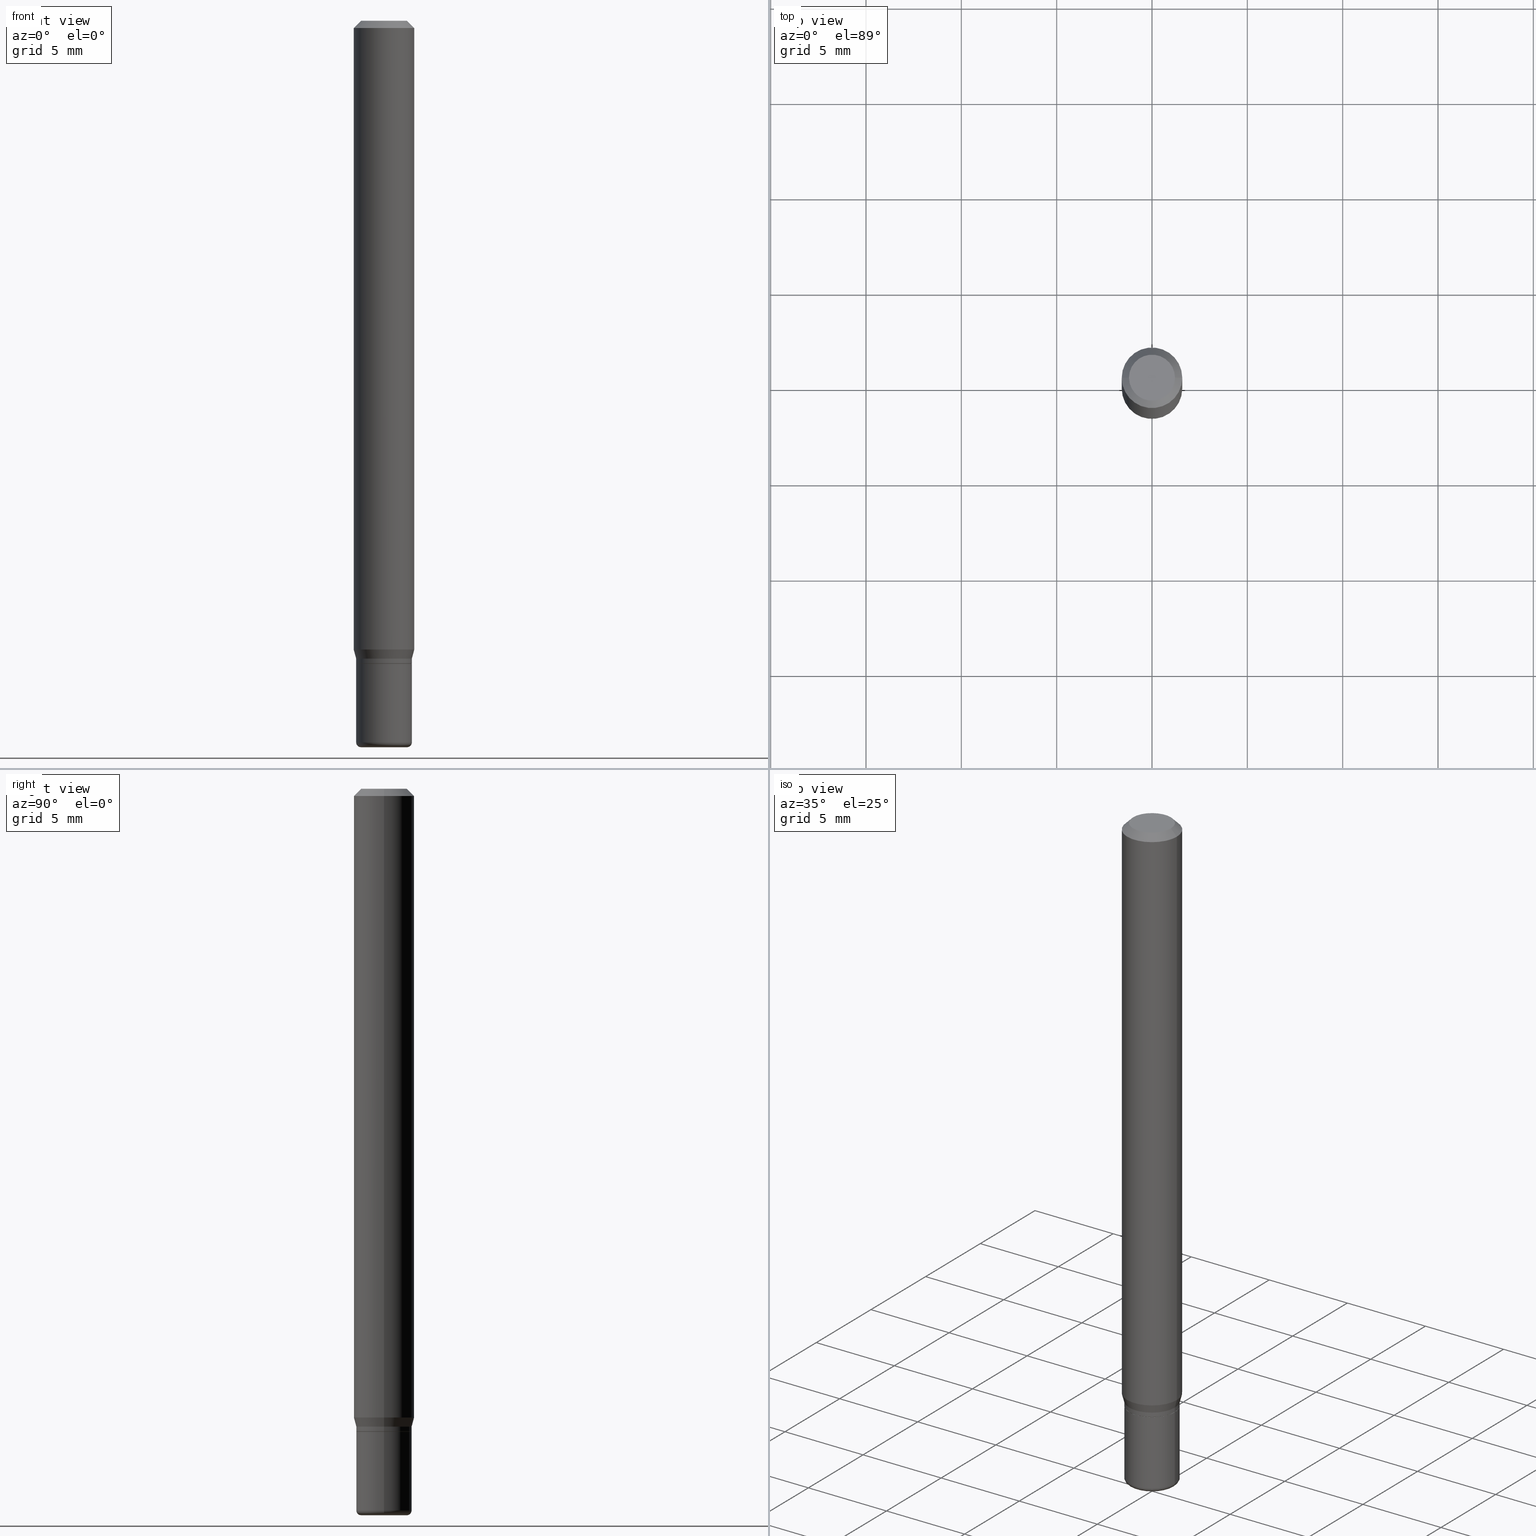
[diagram: canonical four-view strip — front | top / right | iso, engineering-drawing reading convention]
A machine part, canonical four-view strip (front | top / right | iso — engineering-drawing reading convention). The complete STEP part file that produces these views, byte-faithful:
ISO-10303-21;
HEADER;
FILE_DESCRIPTION (( 'STEP AP203' ),
    '1' );
FILE_NAME ('08764.STEP',
    '2024-02-29T20:54:34',
    ( '' ),
    ( '' ),
    'SwSTEP 2.0',
    'SolidWorks 2023',
    '' );
FILE_SCHEMA (( 'CONFIG_CONTROL_DESIGN' ));
ENDSEC;

DATA;
#1 = CARTESIAN_POINT ( 'NONE',  ( -6.680649051745406845E-45, 9.538196290434862081E-31, 2.731847993664263218E-16 ) ) ;
#2 = CARTESIAN_POINT ( 'NONE',  ( 0.05749999999999998168, -4.015203539669602668E-16, 2.803801646082662240E-30 ) ) ;
#3 = FACE_OUTER_BOUND ( 'NONE', #345, .T. ) ;
#4 =( LENGTH_UNIT ( ) NAMED_UNIT ( * ) SI_UNIT ( $, .METRE. ) );
#5 = ORIENTED_EDGE ( 'NONE', *, *, #269, .F. ) ;
#6 = EDGE_LOOP ( 'NONE', ( #274, #289, #120, #455 ) ) ;
#7 =( NAMED_UNIT ( * ) SI_UNIT ( $, .STERADIAN. ) SOLID_ANGLE_UNIT ( ) );
#8 = EDGE_CURVE ( 'NONE', #190, #240, #173, .T. ) ;
#9 = ADVANCED_FACE ( 'NONE', ( #512 ), #162, .T. ) ;
#10 = DIRECTION ( 'NONE',  ( -2.445468806185136597E-29, 3.491481338843145583E-15, 1.000000000000000000 ) ) ;
#11 = CIRCLE ( 'NONE', #479, 0.05749999999999994699 ) ;
#12 = VERTEX_POINT ( 'NONE', #115 ) ;
#13 = APPROVAL_ROLE ( '' ) ;
#14 = DIRECTION ( 'NONE',  ( -2.445468806185136597E-29, 3.491481338843145583E-15, 1.000000000000000000 ) ) ;
#15 = ORIENTED_EDGE ( 'NONE', *, *, #280, .F. ) ;
#16 = ORIENTED_EDGE ( 'NONE', *, *, #323, .F. ) ;
#17 = FACE_OUTER_BOUND ( 'NONE', #75, .T. ) ;
#18 = PRODUCT_DEFINITION_FORMATION_WITH_SPECIFIED_SOURCE ( 'ANY', '', #357, .NOT_KNOWN. ) ;
#19 = DIRECTION ( 'NONE',  ( -2.445468806185136597E-29, 3.491481338843145583E-15, 1.000000000000000000 ) ) ;
#20 = ORIENTED_EDGE ( 'NONE', *, *, #444, .T. ) ;
#21 = DATE_AND_TIME ( #298, #213 ) ;
#22 = EDGE_CURVE ( 'NONE', #497, #462, #212, .T. ) ;
#23 = VERTEX_POINT ( 'NONE', #352 ) ;
#24 = FACE_OUTER_BOUND ( 'NONE', #470, .T. ) ;
#25 = DIRECTION ( 'NONE',  ( -2.445468806185136597E-29, 3.491481338843145583E-15, 1.000000000000000000 ) ) ;
#26 = DIRECTION ( 'NONE',  ( 0.7071067811866199593, -2.468850131083015945E-15, 0.7071067811864750752 ) ) ;
#27 = DIRECTION ( 'NONE',  ( 1.000000000000000000, -6.982962677686262766E-15, 0.000000000000000000 ) ) ;
#28 = DIRECTION ( 'NONE',  ( -2.445468806185136877E-29, 3.491481338843145188E-15, 1.000000000000000000 ) ) ;
#29 = ADVANCED_FACE ( 'NONE', ( #3 ), #397, .T. ) ;
#30 = DESIGN_CONTEXT ( 'detailed design', #263, 'design' ) ;
#31 = LINE ( 'NONE', #347, #239 ) ;
#32 = DIRECTION ( 'NONE',  ( -0.7071067811865479058, 2.468850131082261005E-15, -0.7071067811865471286 ) ) ;
#33 = VECTOR ( 'NONE', #265, 39.37007874015748143 ) ;
#34 = CARTESIAN_POINT ( 'NONE',  ( 0.04750000000000000749, -4.035134999187568762E-16, 2.731847993664288856E-16 ) ) ;
#35 = EDGE_CURVE ( 'NONE', #395, #481, #53, .T. ) ;
#36 = DIRECTION ( 'NONE',  ( 1.000000000000000000, -6.982962677686266711E-15, 0.000000000000000000 ) ) ;
#37 = EDGE_LOOP ( 'NONE', ( #330, #480, #87, #437 ) ) ;
#38 = CARTESIAN_POINT ( 'NONE',  ( 0.06250000000000000000, -4.888073874380378612E-16, -0.01499999999999970281 ) ) ;
#39 = ADVANCED_FACE ( 'NONE', ( #194 ), #515, .T. ) ;
#40 = CC_DESIGN_DATE_AND_TIME_ASSIGNMENT ( #505, #465, ( #427 ) ) ;
#41 = ORIENTED_EDGE ( 'NONE', *, *, #197, .T. ) ;
#42 = ORIENTED_EDGE ( 'NONE', *, *, #122, .F. ) ;
#43 = CARTESIAN_POINT ( 'NONE',  ( 0.05749999999999999556, -4.999801277223384225E-15, -1.317000000000000171 ) ) ;
#44 = CIRCLE ( 'NONE', #176, 0.05750000000000000250 ) ;
#45 = EDGE_CURVE ( 'NONE', #240, #462, #179, .T. ) ;
#46 = ORIENTED_EDGE ( 'NONE', *, *, #35, .F. ) ;
#47 = CARTESIAN_POINT ( 'NONE',  ( 3.246359840210769662E-29, -4.634941477314276569E-15, -1.327500000000000346 ) ) ;
#48 = AXIS2_PLACEMENT_3D ( 'NONE', #224, #516, #346 ) ;
#49 = EDGE_CURVE ( 'NONE', #288, #497, #430, .T. ) ;
#50 = MECHANICAL_CONTEXT ( 'NONE', #301, 'mechanical' ) ;
#51 = DIRECTION ( 'NONE',  ( -2.445468806185136597E-29, 3.491481338843145583E-15, 1.000000000000000000 ) ) ;
#52 = ORIENTED_EDGE ( 'NONE', *, *, #269, .T. ) ;
#53 = CIRCLE ( 'NONE', #141, 0.05749999999999999556 ) ;
#54 = EDGE_LOOP ( 'NONE', ( #415, #510, #431, #169 ) ) ;
#55 = DIRECTION ( 'NONE',  ( -2.445468806185136597E-29, 3.491481338843145583E-15, 1.000000000000000000 ) ) ;
#56 = DIRECTION ( 'NONE',  ( -2.445468806185136597E-29, 3.491481338843145583E-15, 1.000000000000000000 ) ) ;
#57 = APPROVAL_PERSON_ORGANIZATION ( #496, #421, #13 ) ;
#58 = EDGE_CURVE ( 'NONE', #481, #190, #235, .T. ) ;
#59 = AXIS2_PLACEMENT_3D ( 'NONE', #116, #154, #230 ) ;
#60 = CALENDAR_DATE ( 2024, 29, 2 ) ;
#61 = CARTESIAN_POINT ( 'NONE',  ( 0.000000000000000000, 0.000000000000000000, 0.000000000000000000 ) ) ;
#62 = PERSON_AND_ORGANIZATION ( #425, #308 ) ;
#63 = FACE_OUTER_BOUND ( 'NONE', #256, .T. ) ;
#64 = PLANE ( 'NONE',  #494 ) ;
#65 = CARTESIAN_POINT ( 'NONE',  ( 3.175049348580786172E-29, -4.533128994505216724E-15, -1.298339745962155733 ) ) ;
#66 = DIRECTION ( 'NONE',  ( -2.445468806185136597E-29, 3.491481338843145583E-15, 1.000000000000000000 ) ) ;
#67 = DIRECTION ( 'NONE',  ( -2.445468806185136877E-29, 3.491481338843145188E-15, 1.000000000000000000 ) ) ;
#68 = CIRCLE ( 'NONE', #202, 0.06250000000000000000 ) ;
#69 = ADVANCED_FACE ( 'NONE', ( #413 ), #64, .F. ) ;
#70 = CARTESIAN_POINT ( 'NONE',  ( 3.668203209277632395E-31, -5.237222008264614861E-17, -0.01499999999999970281 ) ) ;
#71 = AXIS2_PLACEMENT_3D ( 'NONE', #306, #354, #320 ) ;
#72 = ORIENTED_EDGE ( 'NONE', *, *, #104, .T. ) ;
#73 = ORIENTED_EDGE ( 'NONE', *, *, #504, .T. ) ;
#74 = FACE_OUTER_BOUND ( 'NONE', #335, .T. ) ;
#75 = EDGE_LOOP ( 'NONE', ( #109, #73, #368, #15 ) ) ;
#76 = EDGE_CURVE ( 'NONE', #23, #158, #237, .T. ) ;
#77 = EDGE_LOOP ( 'NONE', ( #181, #457 ) ) ;
#78 = SECURITY_CLASSIFICATION ( '', '', #412 ) ;
#79 = DIRECTION ( 'NONE',  ( 1.000000000000000000, -6.982962677686266711E-15, 4.876176775795935793E-29 ) ) ;
#80 = AXIS2_PLACEMENT_3D ( 'NONE', #1, #469, #195 ) ;
#81 = EDGE_CURVE ( 'NONE', #240, #190, #310, .T. ) ;
#82 = DIRECTION ( 'NONE',  ( -2.445468806185136597E-29, 3.491481338843145583E-15, 1.000000000000000000 ) ) ;
#83 = PRODUCT_RELATED_PRODUCT_CATEGORY ( 'detail', '', ( #357 ) ) ;
#84 = ADVANCED_FACE ( 'NONE', ( #500 ), #375, .T. ) ;
#85 = DIRECTION ( 'NONE',  ( 0.000000000000000000, 0.000000000000000000, 1.000000000000000000 ) ) ;
#86 = ORIENTED_EDGE ( 'NONE', *, *, #489, .T. ) ;
#87 = ORIENTED_EDGE ( 'NONE', *, *, #76, .T. ) ;
#88 = AXIS2_PLACEMENT_3D ( 'NONE', #234, #241, #396 ) ;
#89 = CIRCLE ( 'NONE', #156, 0.04750000000000000749 ) ;
#90 = PERSON_AND_ORGANIZATION_ROLE ( 'classification_officer' ) ;
#91 = CC_DESIGN_PERSON_AND_ORGANIZATION_ASSIGNMENT ( #127, #422, ( #357 ) ) ;
#92 = DIRECTION ( 'NONE',  ( 1.000000000000000000, -6.982962677686262766E-15, 0.000000000000000000 ) ) ;
#93 = APPROVAL ( #218, 'UNSPECIFIED' ) ;
#94 = PERSON_AND_ORGANIZATION ( #425, #308 ) ;
#95 = ORIENTED_EDGE ( 'NONE', *, *, #417, .T. ) ;
#96 = CARTESIAN_POINT ( 'NONE',  ( -6.680649051745406845E-45, 9.538196290434862081E-31, 2.731847993664263218E-16 ) ) ;
#97 = EDGE_CURVE ( 'NONE', #395, #240, #342, .T. ) ;
#98 = DATE_AND_TIME ( #60, #174 ) ;
#99 = CARTESIAN_POINT ( 'NONE',  ( 3.175049348580786172E-29, -4.533128994505216724E-15, -1.298339745962155733 ) ) ;
#100 = AXIS2_PLACEMENT_3D ( 'NONE', #61, #416, #498 ) ;
#101 = PERSON_AND_ORGANIZATION ( #425, #308 ) ;
#102 = CYLINDRICAL_SURFACE ( 'NONE', #100, 0.05749999999999997474 ) ;
#103 = ORIENTED_EDGE ( 'NONE', *, *, #104, .F. ) ;
#104 = EDGE_CURVE ( 'NONE', #288, #360, #436, .T. ) ;
#105 = DIRECTION ( 'NONE',  ( 1.000000000000000000, -6.982962677686265922E-15, 4.876176775795935793E-29 ) ) ;
#106 = DIRECTION ( 'NONE',  ( 2.445468806185136597E-29, -3.491481338843145583E-15, -1.000000000000000000 ) ) ;
#107 = ORIENTED_EDGE ( 'NONE', *, *, #76, .F. ) ;
#108 = CLOSED_SHELL ( 'NONE', ( #423, #128, #385, #193, #254, #69 ) ) ;
#109 = ORIENTED_EDGE ( 'NONE', *, *, #379, .F. ) ;
#110 = VECTOR ( 'NONE', #146, 39.37007874015748143 ) ;
#111 = DIRECTION ( 'NONE',  ( 7.105427357601001859E-15, 1.000000000000000000, -3.491481338843145583E-15 ) ) ;
#112 = PLANE ( 'NONE',  #394 ) ;
#113 = ORIENTED_EDGE ( 'NONE', *, *, #122, .T. ) ;
#114 = CARTESIAN_POINT ( 'NONE',  ( 3.220682417745825876E-29, -4.598280923256423416E-15, -1.317000000000000171 ) ) ;
#115 = CARTESIAN_POINT ( 'NONE',  ( -0.05749999999999997474, -4.224633663582798278E-15, -1.327000000000000401 ) ) ;
#116 = CARTESIAN_POINT ( 'NONE',  ( 3.220682417745825876E-29, -4.598280923256423416E-15, -1.317000000000000171 ) ) ;
#117 = AXIS2_PLACEMENT_3D ( 'NONE', #233, #435, #36 ) ;
#118 = CARTESIAN_POINT ( 'NONE',  ( 0.000000000000000000, 0.000000000000000000, 0.000000000000000000 ) ) ;
#119 = AXIS2_PLACEMENT_3D ( 'NONE', #47, #483, #206 ) ;
#120 = ORIENTED_EDGE ( 'NONE', *, *, #8, .F. ) ;
#121 = DIRECTION ( 'NONE',  ( -2.445468806185136597E-29, 3.491481338843145583E-15, 1.000000000000000000 ) ) ;
#122 = EDGE_CURVE ( 'NONE', #190, #497, #420, .T. ) ;
#123 = CIRCLE ( 'NONE', #402, 0.05749999999999994699 ) ;
#124 = DIRECTION ( 'NONE',  ( -2.445468806185136597E-29, 3.491481338843145583E-15, 1.000000000000000000 ) ) ;
#125 = AXIS2_PLACEMENT_3D ( 'NONE', #294, #251, #459 ) ;
#126 = CC_DESIGN_DATE_AND_TIME_ASSIGNMENT ( #21, #303, ( #78 ) ) ;
#127 = PERSON_AND_ORGANIZATION ( #425, #308 ) ;
#128 = ADVANCED_FACE ( 'NONE', ( #63 ), #102, .T. ) ;
#129 = VERTEX_POINT ( 'NONE', #503 ) ;
#130 = DIRECTION ( 'NONE',  ( 1.000000000000000000, -6.982962677686266711E-15, 4.852736867747365086E-29 ) ) ;
#131 = AXIS2_PLACEMENT_3D ( 'NONE', #386, #433, #199 ) ;
#132 = PERSON_AND_ORGANIZATION_ROLE ( 'creator' ) ;
#133 = ORIENTED_EDGE ( 'NONE', *, *, #45, .T. ) ;
#134 = CYLINDRICAL_SURFACE ( 'NONE', #392, 0.05749999999999997474 ) ;
#135 = COORDINATED_UNIVERSAL_TIME_OFFSET ( 5, 0, .BEHIND. ) ;
#136 = DIRECTION ( 'NONE',  ( -2.445468806185136597E-29, 3.491481338843145583E-15, 1.000000000000000000 ) ) ;
#137 = AXIS2_PLACEMENT_3D ( 'NONE', #439, #121, #443 ) ;
#138 = CALENDAR_DATE ( 2024, 29, 2 ) ;
#139 = ADVANCED_BREP_SHAPE_REPRESENTATION ( '08764', ( #143, #312, #472 ), #245 ) ;
#140 = CARTESIAN_POINT ( 'NONE',  ( 0.000000000000000000, 0.000000000000000000, 0.000000000000000000 ) ) ;
#141 = AXIS2_PLACEMENT_3D ( 'NONE', #279, #10, #333 ) ;
#142 = APPROVAL_ROLE ( '' ) ;
#143 = MANIFOLD_SOLID_BREP ( 'Body-Move/Copy2[1]', #108 ) ;
#144 = PLANE ( 'NONE',  #253 ) ;
#145 = LINE ( 'NONE', #389, #326 ) ;
#146 = DIRECTION ( 'NONE',  ( -2.445468806185136877E-29, 3.491481338843145188E-15, 1.000000000000000000 ) ) ;
#147 = CARTESIAN_POINT ( 'NONE',  ( 3.246359840210769662E-29, -4.634941477314276569E-15, -1.327500000000000346 ) ) ;
#148 = AXIS2_PLACEMENT_3D ( 'NONE', #65, #225, #27 ) ;
#149 = AXIS2_PLACEMENT_3D ( 'NONE', #96, #55, #130 ) ;
#150 = FACE_OUTER_BOUND ( 'NONE', #37, .T. ) ;
#151 = VECTOR ( 'NONE', #170, 39.37007874015748143 ) ;
#152 = DIRECTION ( 'NONE',  ( -2.445468806185136597E-29, 3.491481338843145583E-15, 1.000000000000000000 ) ) ;
#153 = AXIS2_PLACEMENT_3D ( 'NONE', #159, #124, #232 ) ;
#154 = DIRECTION ( 'NONE',  ( -2.445468806185136597E-29, 3.491481338843145583E-15, 1.000000000000000000 ) ) ;
#155 = APPROVAL_PERSON_ORGANIZATION ( #291, #166, #142 ) ;
#156 = AXIS2_PLACEMENT_3D ( 'NONE', #434, #152, #351 ) ;
#157 = ORIENTED_EDGE ( 'NONE', *, *, #81, .T. ) ;
#158 = VERTEX_POINT ( 'NONE', #373 ) ;
#159 = CARTESIAN_POINT ( 'NONE',  ( 3.245137105807677421E-29, -4.633195736644855065E-15, -1.327000000000000401 ) ) ;
#160 = DIRECTION ( 'NONE',  ( -2.445468806185136597E-29, 3.491481338843145583E-15, 1.000000000000000000 ) ) ;
#161 = DIMENSIONAL_EXPONENTS ( 1.000000000000000000, 0.000000000000000000, 0.000000000000000000, 0.000000000000000000, 0.000000000000000000, 0.000000000000000000, 0.000000000000000000 ) ;
#162 = CONICAL_SURFACE ( 'NONE', #71, 0.05699999999999997430, 0.7853981633975507526 ) ;
#163 = ORIENTED_EDGE ( 'NONE', *, *, #489, .F. ) ;
#164 = FACE_OUTER_BOUND ( 'NONE', #214, .T. ) ;
#165 = ORIENTED_EDGE ( 'NONE', *, *, #390, .F. ) ;
#166 = APPROVAL ( #249, 'UNSPECIFIED' ) ;
#167 = DIRECTION ( 'NONE',  ( -2.445468806185136597E-29, 3.491481338843145583E-15, 1.000000000000000000 ) ) ;
#168 = APPROVAL_DATE_TIME ( #98, #166 ) ;
#169 = ORIENTED_EDGE ( 'NONE', *, *, #277, .F. ) ;
#170 = DIRECTION ( 'NONE',  ( -2.445468806185136877E-29, 3.491481338843145188E-15, 1.000000000000000000 ) ) ;
#171 = UNCERTAINTY_MEASURE_WITH_UNIT (LENGTH_MEASURE( 1.000000000000000082E-05 ), #359, 'distance_accuracy_value', 'NONE');
#172 = EDGE_LOOP ( 'NONE', ( #446, #86, #16, #372 ) ) ;
#173 = CIRCLE ( 'NONE', #148, 0.06250000000000000000 ) ;
#174 = LOCAL_TIME ( 15, 54, 34.00000000000000000, #414 ) ;
#175 = CARTESIAN_POINT ( 'NONE',  ( 3.582686580359766038E-29, -5.359686688179453325E-15, -1.500000000000000222 ) ) ;
#176 = AXIS2_PLACEMENT_3D ( 'NONE', #428, #311, #226 ) ;
#177 = APPROVAL_ROLE ( '' ) ;
#178 = VERTEX_POINT ( 'NONE', #493 ) ;
#179 = LINE ( 'NONE', #188, #110 ) ;
#180 = FACE_OUTER_BOUND ( 'NONE', #507, .T. ) ;
#181 = ORIENTED_EDGE ( 'NONE', *, *, #204, .T. ) ;
#182 = DIRECTION ( 'NONE',  ( -2.445468806185136597E-29, 3.491481338843145583E-15, 1.000000000000000000 ) ) ;
#183 = EDGE_CURVE ( 'NONE', #178, #452, #408, .T. ) ;
#184 = DIRECTION ( 'NONE',  ( -1.000000000000000000, 6.982962677686265922E-15, -4.876176775795935793E-29 ) ) ;
#185 = CIRCLE ( 'NONE', #88, 0.04750000000000000749 ) ;
#186 = AXIS2_PLACEMENT_3D ( 'NONE', #336, #467, #453 ) ;
#187 = DIRECTION ( 'NONE',  ( -2.445468806185136597E-29, 3.491481338843145583E-15, 1.000000000000000000 ) ) ;
#188 = CARTESIAN_POINT ( 'NONE',  ( -0.06250000000000000000, 4.440892098500626162E-16, -3.074334431409316114E-30 ) ) ;
#189 = ADVANCED_FACE ( 'NONE', ( #180 ), #382, .T. ) ;
#190 = VERTEX_POINT ( 'NONE', #331 ) ;
#191 = ORIENTED_EDGE ( 'NONE', *, *, #22, .T. ) ;
#192 = CARTESIAN_POINT ( 'NONE',  ( -0.04750000000000000749, -4.864799395390240612E-15, -1.490000000000000213 ) ) ;
#193 = ADVANCED_FACE ( 'NONE', ( #17 ), #134, .T. ) ;
#194 = FACE_OUTER_BOUND ( 'NONE', #172, .T. ) ;
#195 = DIRECTION ( 'NONE',  ( 1.000000000000000000, -6.982962677686266711E-15, 4.852736867747365086E-29 ) ) ;
#196 = LOCAL_TIME ( 15, 54, 34.00000000000000000, #135 ) ;
#197 = EDGE_CURVE ( 'NONE', #158, #499, #11, .T. ) ;
#198 = CARTESIAN_POINT ( 'NONE',  ( 0.05749999999999997474, -5.034716090611815874E-15, -1.327000000000000401 ) ) ;
#199 = DIRECTION ( 'NONE',  ( 1.000000000000000000, -6.982962677686262766E-15, 4.883557194083111780E-29 ) ) ;
#200 = ORIENTED_EDGE ( 'NONE', *, *, #242, .F. ) ;
#201 = CARTESIAN_POINT ( 'NONE',  ( -0.06250000000000000000, -1.848661397443868694E-15, -0.01499999999999970281 ) ) ;
#202 = AXIS2_PLACEMENT_3D ( 'NONE', #283, #207, #400 ) ;
#203 = ORIENTED_EDGE ( 'NONE', *, *, #284, .F. ) ;
#204 = EDGE_CURVE ( 'NONE', #129, #366, #264, .T. ) ;
#205 = ORIENTED_EDGE ( 'NONE', *, *, #204, .F. ) ;
#206 = DIRECTION ( 'NONE',  ( 1.000000000000000000, -6.982962677686268288E-15, 0.000000000000000000 ) ) ;
#207 = DIRECTION ( 'NONE',  ( -2.445468806185136597E-29, 3.491481338843145583E-15, 1.000000000000000000 ) ) ;
#208 = ORIENTED_EDGE ( 'NONE', *, *, #183, .F. ) ;
#209 = TOROIDAL_SURFACE ( 'NONE', #131, 0.04750000000000000749, 0.009999999999999944697 ) ;
#210 = ORIENTED_EDGE ( 'NONE', *, *, #259, .F. ) ;
#211 = DIRECTION ( 'NONE',  ( 1.000000000000000000, -6.982962677686266711E-15, 4.876176775795935793E-29 ) ) ;
#212 = CIRCLE ( 'NONE', #117, 0.06250000000000000000 ) ;
#213 = LOCAL_TIME ( 15, 54, 34.00000000000000000, #221 ) ;
#214 = EDGE_LOOP ( 'NONE', ( #52, #411, #448, #107 ) ) ;
#215 = DIRECTION ( 'NONE',  ( 1.000000000000000000, -6.982962677686267499E-15, 4.876176775795936353E-29 ) ) ;
#216 = CIRCLE ( 'NONE', #378, 0.009999999999999944697 ) ;
#217 = AXIS2_PLACEMENT_3D ( 'NONE', #147, #262, #511 ) ;
#218 = APPROVAL_STATUS ( 'not_yet_approved' ) ;
#219 = ORIENTED_EDGE ( 'NONE', *, *, #97, .F. ) ;
#220 = CARTESIAN_POINT ( 'NONE',  ( 0.06250000000000000000, -4.364351673553916694E-16, 3.047610484872459871E-30 ) ) ;
#221 = COORDINATED_UNIVERSAL_TIME_OFFSET ( 5, 0, .BEHIND. ) ;
#222 = DIRECTION ( 'NONE',  ( 1.000000000000000000, -6.982962677686273810E-15, 0.000000000000000000 ) ) ;
#223 = DIRECTION ( 'NONE',  ( -2.438088387897960049E-29, 3.491481338843145188E-15, 1.000000000000000000 ) ) ;
#224 = CARTESIAN_POINT ( 'NONE',  ( 3.220682417745825876E-29, -4.598280923256423416E-15, -1.317000000000000171 ) ) ;
#225 = DIRECTION ( 'NONE',  ( -2.445468806185136597E-29, 3.491481338843145583E-15, 1.000000000000000000 ) ) ;
#226 = DIRECTION ( 'NONE',  ( 1.000000000000000000, -6.982962677686273810E-15, 0.000000000000000000 ) ) ;
#227 = ADVANCED_FACE ( 'NONE', ( #24 ), #257, .F. ) ;
#228 = DIRECTION ( 'NONE',  ( 2.438088387897960049E-29, -3.491481338843145188E-15, -1.000000000000000000 ) ) ;
#229 = ORIENTED_EDGE ( 'NONE', *, *, #444, .F. ) ;
#230 = DIRECTION ( 'NONE',  ( 1.000000000000000000, -6.982962677686274599E-15, 0.000000000000000000 ) ) ;
#231 = ADVANCED_FACE ( 'NONE', ( #343 ), #144, .F. ) ;
#232 = DIRECTION ( 'NONE',  ( 1.000000000000000000, -6.982962677686259611E-15, 0.000000000000000000 ) ) ;
#233 = CARTESIAN_POINT ( 'NONE',  ( 3.668203209277632395E-31, -5.237222008264614861E-17, -0.01499999999999970281 ) ) ;
#234 = CARTESIAN_POINT ( 'NONE',  ( 3.668203209277704895E-29, -5.237222008264718177E-15, -1.500000000000000222 ) ) ;
#235 = LINE ( 'NONE', #380, #248 ) ;
#236 = ORIENTED_EDGE ( 'NONE', *, *, #45, .F. ) ;
#237 = CIRCLE ( 'NONE', #186, 0.009999999999999944697 ) ;
#238 =( NAMED_UNIT ( * ) PLANE_ANGLE_UNIT ( ) SI_UNIT ( $, .RADIAN. ) );
#239 = VECTOR ( 'NONE', #67, 39.37007874015748143 ) ;
#240 = VERTEX_POINT ( 'NONE', #260 ) ;
#241 = DIRECTION ( 'NONE',  ( -2.445468806185136597E-29, 3.491481338843145583E-15, 1.000000000000000000 ) ) ;
#242 = EDGE_CURVE ( 'NONE', #360, #462, #426, .T. ) ;
#243 = DIRECTION ( 'NONE',  ( 1.000000000000000000, 0.000000000000000000, 0.000000000000000000 ) ) ;
#244 = ORIENTED_EDGE ( 'NONE', *, *, #379, .T. ) ;
#245 =( GEOMETRIC_REPRESENTATION_CONTEXT ( 3 ) GLOBAL_UNCERTAINTY_ASSIGNED_CONTEXT ( ( #171 ) ) GLOBAL_UNIT_ASSIGNED_CONTEXT ( ( #359, #238, #7 ) ) REPRESENTATION_CONTEXT ( 'NONE', 'WORKASPACE' ) );
#246 = APPLICATION_PROTOCOL_DEFINITION ( 'international standard', 'config_control_design', 1994, #263 ) ;
#247 = ORIENTED_EDGE ( 'NONE', *, *, #183, .T. ) ;
#248 = VECTOR ( 'NONE', #514, 39.37007874015748143 ) ;
#249 = APPROVAL_STATUS ( 'not_yet_approved' ) ;
#250 = CARTESIAN_POINT ( 'NONE',  ( -0.05749999999999999556, -4.189718850194365841E-15, -1.317000000000000171 ) ) ;
#251 = DIRECTION ( 'NONE',  ( 2.445468806185136597E-29, -3.491481338843145583E-15, -1.000000000000000000 ) ) ;
#252 = DIRECTION ( 'NONE',  ( -0.2588190451025199623, 5.211531920934541575E-15, 0.9659258262890685343 ) ) ;
#253 = AXIS2_PLACEMENT_3D ( 'NONE', #304, #468, #105 ) ;
#254 = ADVANCED_FACE ( 'NONE', ( #150 ), #209, .T. ) ;
#255 = AXIS2_PLACEMENT_3D ( 'NONE', #114, #187, #270 ) ;
#256 = EDGE_LOOP ( 'NONE', ( #41, #244, #205, #210 ) ) ;
#257 = PLANE ( 'NONE',  #362 ) ;
#258 = CIRCLE ( 'NONE', #153, 0.05749999999999997474 ) ;
#259 = EDGE_CURVE ( 'NONE', #158, #129, #145, .T. ) ;
#260 = CARTESIAN_POINT ( 'NONE',  ( -0.06250000000000000000, -4.089039784655154896E-15, -1.298339745962155733 ) ) ;
#261 = AXIS2_PLACEMENT_3D ( 'NONE', #276, #160, #79 ) ;
#262 = DIRECTION ( 'NONE',  ( -2.445468806185136597E-29, 3.491481338843145583E-15, 1.000000000000000000 ) ) ;
#263 = APPLICATION_CONTEXT ( 'configuration controlled 3d designs of mechanical parts and assemblies' ) ;
#264 = CIRCLE ( 'NONE', #317, 0.05750000000000000250 ) ;
#265 = DIRECTION ( 'NONE',  ( 0.7071067811865479058, -7.319954787623257623E-15, -0.7071067811865471286 ) ) ;
#266 = ORIENTED_EDGE ( 'NONE', *, *, #81, .F. ) ;
#267 = CARTESIAN_POINT ( 'NONE',  ( 3.245137105807677421E-29, -4.633195736644855065E-15, -1.327000000000000401 ) ) ;
#268 = CARTESIAN_POINT ( 'NONE',  ( 4.015203539669927580E-16, 0.05749999999999536732, -1.327500000000000568 ) ) ;
#269 = EDGE_CURVE ( 'NONE', #23, #488, #89, .T. ) ;
#270 = DIRECTION ( 'NONE',  ( 1.000000000000000000, -6.982962677686274599E-15, 0.000000000000000000 ) ) ;
#271 = CIRCLE ( 'NONE', #518, 0.05749999999999997474 ) ;
#272 = ORIENTED_EDGE ( 'NONE', *, *, #324, .F. ) ;
#273 = FACE_OUTER_BOUND ( 'NONE', #454, .T. ) ;
#274 = ORIENTED_EDGE ( 'NONE', *, *, #323, .T. ) ;
#275 = EDGE_CURVE ( 'NONE', #338, #481, #391, .T. ) ;
#276 = CARTESIAN_POINT ( 'NONE',  ( 0.000000000000000000, 0.000000000000000000, 0.000000000000000000 ) ) ;
#277 = EDGE_CURVE ( 'NONE', #452, #338, #387, .T. ) ;
#278 = DIRECTION ( 'NONE',  ( -2.445468806185136877E-29, 3.491481338843145188E-15, 1.000000000000000000 ) ) ;
#279 = CARTESIAN_POINT ( 'NONE',  ( 3.220682417745825876E-29, -4.598280923256423416E-15, -1.317000000000000171 ) ) ;
#280 = EDGE_CURVE ( 'NONE', #366, #129, #44, .T. ) ;
#281 = ORIENTED_EDGE ( 'NONE', *, *, #49, .F. ) ;
#282 = CIRCLE ( 'NONE', #80, 0.04750000000000000749 ) ;
#283 = CARTESIAN_POINT ( 'NONE',  ( 3.668203209277632395E-31, -5.237222008264614861E-17, -0.01499999999999970281 ) ) ;
#284 = EDGE_CURVE ( 'NONE', #360, #288, #282, .T. ) ;
#285 = CARTESIAN_POINT ( 'NONE',  ( 0.000000000000000000, 0.000000000000000000, 0.000000000000000000 ) ) ;
#286 = CARTESIAN_POINT ( 'NONE',  ( -0.05749999999999994699, -4.510062263033223973E-15, -1.490000000000000213 ) ) ;
#287 = DIRECTION ( 'NONE',  ( 1.000000000000000000, -6.982962677686267499E-15, 4.876176775795935793E-29 ) ) ;
#288 = VERTEX_POINT ( 'NONE', #34 ) ;
#289 = ORIENTED_EDGE ( 'NONE', *, *, #97, .T. ) ;
#290 = CC_DESIGN_APPROVAL ( #166, ( #427 ) ) ;
#291 = PERSON_AND_ORGANIZATION ( #425, #308 ) ;
#292 = DIRECTION ( 'NONE',  ( 1.000000000000000000, -6.982962677686268288E-15, 0.000000000000000000 ) ) ;
#293 = PERSON_AND_ORGANIZATION ( #425, #308 ) ;
#294 = CARTESIAN_POINT ( 'NONE',  ( 3.668203209277632395E-31, -5.237222008264614861E-17, -0.01499999999999970281 ) ) ;
#295 = CALENDAR_DATE ( 2024, 29, 2 ) ;
#296 = CARTESIAN_POINT ( 'NONE',  ( 0.000000000000000000, 0.000000000000000000, 0.000000000000000000 ) ) ;
#297 = EDGE_CURVE ( 'NONE', #488, #499, #216, .T. ) ;
#298 = CALENDAR_DATE ( 2024, 29, 2 ) ;
#299 = LOCAL_TIME ( 15, 54, 34.00000000000000000, #410 ) ;
#300 = CARTESIAN_POINT ( 'NONE',  ( 3.246359840210769662E-29, -4.634941477314276569E-15, -1.327500000000000346 ) ) ;
#301 = APPLICATION_CONTEXT ( 'configuration controlled 3d designs of mechanical parts and assemblies' ) ;
#302 = VECTOR ( 'NONE', #32, 39.37007874015748143 ) ;
#303 = DATE_TIME_ROLE ( 'classification_date' ) ;
#304 = CARTESIAN_POINT ( 'NONE',  ( 3.246359840210769662E-29, -4.634941477314276569E-15, -1.327500000000000346 ) ) ;
#305 = DIRECTION ( 'NONE',  ( -2.445468806185136877E-29, 3.491481338843145188E-15, 1.000000000000000000 ) ) ;
#306 = CARTESIAN_POINT ( 'NONE',  ( 3.246359840210769662E-29, -4.634941477314276569E-15, -1.327500000000000346 ) ) ;
#307 = ADVANCED_FACE ( 'NONE', ( #74 ), #506, .T. ) ;
#308 = ORGANIZATION ( 'UNSPECIFIED', 'UNSPECIFIED', '' ) ;
#309 = DIRECTION ( 'NONE',  ( -1.000000000000000000, 7.105427357600964782E-15, 0.000000000000000000 ) ) ;
#310 = CIRCLE ( 'NONE', #403, 0.06250000000000000000 ) ;
#311 = DIRECTION ( 'NONE',  ( -2.445468806185136597E-29, 3.491481338843145583E-15, 1.000000000000000000 ) ) ;
#312 = MANIFOLD_SOLID_BREP ( 'Body-Move/Copy2[2]', #401 ) ;
#313 = DIRECTION ( 'NONE',  ( 1.000000000000000000, -6.982962677686259611E-15, 0.000000000000000000 ) ) ;
#314 = LINE ( 'NONE', #478, #418 ) ;
#315 = EDGE_CURVE ( 'NONE', #338, #12, #271, .T. ) ;
#316 = VECTOR ( 'NONE', #278, 39.37007874015748143 ) ;
#317 = AXIS2_PLACEMENT_3D ( 'NONE', #508, #136, #222 ) ;
#318 = ORIENTED_EDGE ( 'NONE', *, *, #242, .T. ) ;
#319 = CYLINDRICAL_SURFACE ( 'NONE', #261, 0.06250000000000000000 ) ;
#320 = DIRECTION ( 'NONE',  ( 1.000000000000000000, -6.982962677686268288E-15, 0.000000000000000000 ) ) ;
#321 = ORIENTED_EDGE ( 'NONE', *, *, #58, .T. ) ;
#322 = CARTESIAN_POINT ( 'NONE',  ( -0.04750000000000000749, -4.846729665296451395E-15, -1.500000000000000222 ) ) ;
#323 = EDGE_CURVE ( 'NONE', #481, #395, #517, .T. ) ;
#324 = EDGE_CURVE ( 'NONE', #178, #12, #314, .T. ) ;
#325 = CC_DESIGN_SECURITY_CLASSIFICATION ( #78, ( #18 ) ) ;
#326 = VECTOR ( 'NONE', #305, 39.37007874015748143 ) ;
#327 = LENGTH_MEASURE_WITH_UNIT ( LENGTH_MEASURE( 0.02539999999999999897 ), #4 );
#328 = ORIENTED_EDGE ( 'NONE', *, *, #8, .T. ) ;
#329 = APPROVAL_STATUS ( 'not_yet_approved' ) ;
#330 = ORIENTED_EDGE ( 'NONE', *, *, #297, .F. ) ;
#331 = CARTESIAN_POINT ( 'NONE',  ( 0.06250000000000000000, -4.969564161860609182E-15, -1.298339745962155733 ) ) ;
#332 = ORIENTED_EDGE ( 'NONE', *, *, #284, .T. ) ;
#333 = DIRECTION ( 'NONE',  ( 1.000000000000000000, -6.982962677686274599E-15, 0.000000000000000000 ) ) ;
#334 = AXIS2_PLACEMENT_3D ( 'NONE', #484, #51, #287 ) ;
#335 = EDGE_LOOP ( 'NONE', ( #281, #203, #318, #20 ) ) ;
#336 = CARTESIAN_POINT ( 'NONE',  ( 0.04750000000000000749, -5.533997922066385616E-15, -1.490000000000000213 ) ) ;
#337 = DATE_AND_TIME ( #461, #196 ) ;
#338 = VERTEX_POINT ( 'NONE', #198 ) ;
#339 = DIRECTION ( 'NONE',  ( 1.000000000000000000, -6.982962677686265922E-15, 4.876176775795935793E-29 ) ) ;
#340 = APPROVAL_DATE_TIME ( #450, #93 ) ;
#341 = EDGE_LOOP ( 'NONE', ( #328, #133, #419, #42 ) ) ;
#342 = LINE ( 'NONE', #250, #356 ) ;
#343 = FACE_OUTER_BOUND ( 'NONE', #406, .T. ) ;
#344 = FACE_OUTER_BOUND ( 'NONE', #6, .T. ) ;
#345 = EDGE_LOOP ( 'NONE', ( #163, #95, #492, #46 ) ) ;
#346 = DIRECTION ( 'NONE',  ( 1.000000000000000000, -6.982962677686274599E-15, 0.000000000000000000 ) ) ;
#347 = CARTESIAN_POINT ( 'NONE',  ( -0.05749999999999997474, 4.085620730620574274E-16, -2.828387676896569661E-30 ) ) ;
#348 = AXIS2_PLACEMENT_3D ( 'NONE', #70, #106, #513 ) ;
#349 = CARTESIAN_POINT ( 'NONE',  ( 0.05699999999999997430, -5.032970349942393582E-15, -1.327500000000000346 ) ) ;
#350 = ADVANCED_FACE ( 'NONE', ( #273 ), #442, .T. ) ;
#351 = DIRECTION ( 'NONE',  ( 1.000000000000000000, -6.982962677686260400E-15, 0.000000000000000000 ) ) ;
#352 = CARTESIAN_POINT ( 'NONE',  ( 0.04750000000000000749, -5.568912735454815688E-15, -1.500000000000000222 ) ) ;
#353 = CARTESIAN_POINT ( 'NONE',  ( 3.643748521215853910E-29, -5.202307194876288105E-15, -1.490000000000000213 ) ) ;
#354 = DIRECTION ( 'NONE',  ( -2.445468806185136597E-29, 3.491481338843145583E-15, 1.000000000000000000 ) ) ;
#355 = APPROVAL_PERSON_ORGANIZATION ( #371, #93, #177 ) ;
#356 = VECTOR ( 'NONE', #252, 39.37007874015748143 ) ;
#357 = PRODUCT ( '08764', '08764', '', ( #50 ) ) ;
#358 = LINE ( 'NONE', #482, #316 ) ;
#359 =( CONVERSION_BASED_UNIT ( 'INCH', #327 ) LENGTH_UNIT ( ) NAMED_UNIT ( #161 ) );
#360 = VERTEX_POINT ( 'NONE', #438 ) ;
#361 = CC_DESIGN_APPROVAL ( #93, ( #18 ) ) ;
#362 = AXIS2_PLACEMENT_3D ( 'NONE', #424, #383, #184 ) ;
#363 = CARTESIAN_POINT ( 'NONE',  ( 0.05699999999999997430, -5.032970349942393582E-15, -1.327500000000000346 ) ) ;
#364 = ORIENTED_EDGE ( 'NONE', *, *, #35, .T. ) ;
#365 = ADVANCED_FACE ( 'NONE', ( #473 ), #404, .T. ) ;
#366 = VERTEX_POINT ( 'NONE', #432 ) ;
#367 = PERSON_AND_ORGANIZATION_ROLE ( 'design_supplier' ) ;
#368 = ORIENTED_EDGE ( 'NONE', *, *, #259, .T. ) ;
#369 = CIRCLE ( 'NONE', #119, 0.05699999999999997430 ) ;
#370 = ADVANCED_FACE ( 'NONE', ( #344 ), #476, .T. ) ;
#371 = PERSON_AND_ORGANIZATION ( #425, #308 ) ;
#372 = ORIENTED_EDGE ( 'NONE', *, *, #275, .F. ) ;
#373 = CARTESIAN_POINT ( 'NONE',  ( 0.05749999999999994699, -5.603827548843247337E-15, -1.490000000000000213 ) ) ;
#374 = APPROVAL_DATE_TIME ( #337, #421 ) ;
#375 = CONICAL_SURFACE ( 'NONE', #125, 0.06250000000000000000, 0.7853981633974488341 ) ;
#376 = ORIENTED_EDGE ( 'NONE', *, *, #49, .T. ) ;
#377 = CARTESIAN_POINT ( 'NONE',  ( 3.643748521215853910E-29, -5.202307194876288105E-15, -1.490000000000000213 ) ) ;
#378 = AXIS2_PLACEMENT_3D ( 'NONE', #192, #111, #309 ) ;
#379 = EDGE_CURVE ( 'NONE', #499, #366, #31, .T. ) ;
#380 = CARTESIAN_POINT ( 'NONE',  ( 0.05749999999999999556, -4.999801277223384225E-15, -1.317000000000000171 ) ) ;
#381 = EDGE_LOOP ( 'NONE', ( #5, #388 ) ) ;
#382 = CYLINDRICAL_SURFACE ( 'NONE', #486, 0.06250000000000000000 ) ;
#383 = DIRECTION ( 'NONE',  ( 2.438088387897960049E-29, -3.491481338843145188E-15, -1.000000000000000000 ) ) ;
#384 = ORIENTED_EDGE ( 'NONE', *, *, #417, .F. ) ;
#385 = ADVANCED_FACE ( 'NONE', ( #475 ), #112, .F. ) ;
#386 = CARTESIAN_POINT ( 'NONE',  ( 3.643748521215853910E-29, -5.202307194876288105E-15, -1.490000000000000213 ) ) ;
#387 = LINE ( 'NONE', #349, #429 ) ;
#388 = ORIENTED_EDGE ( 'NONE', *, *, #458, .F. ) ;
#389 = CARTESIAN_POINT ( 'NONE',  ( 0.05749999999999997474, -4.015203539669602175E-16, 2.803801646082662240E-30 ) ) ;
#390 = EDGE_CURVE ( 'NONE', #452, #178, #369, .T. ) ;
#391 = LINE ( 'NONE', #2, #441 ) ;
#392 = AXIS2_PLACEMENT_3D ( 'NONE', #296, #56, #215 ) ;
#393 = CARTESIAN_POINT ( 'NONE',  ( -0.06250000000000000000, 3.840629472727455270E-16, -0.01499999999999970281 ) ) ;
#394 = AXIS2_PLACEMENT_3D ( 'NONE', #268, #228, #405 ) ;
#395 = VERTEX_POINT ( 'NONE', #440 ) ;
#396 = DIRECTION ( 'NONE',  ( 1.000000000000000000, -6.982962677686260400E-15, 0.000000000000000000 ) ) ;
#397 = CYLINDRICAL_SURFACE ( 'NONE', #334, 0.05749999999999998168 ) ;
#398 = CC_DESIGN_PERSON_AND_ORGANIZATION_ASSIGNMENT ( #293, #90, ( #78 ) ) ;
#399 = ORIENTED_EDGE ( 'NONE', *, *, #277, .T. ) ;
#400 = DIRECTION ( 'NONE',  ( 1.000000000000000000, -6.982962677686266711E-15, 0.000000000000000000 ) ) ;
#401 = CLOSED_SHELL ( 'NONE', ( #39, #9, #84, #495, #370, #365, #189, #307, #227, #231, #350, #29 ) ) ;
#402 = AXIS2_PLACEMENT_3D ( 'NONE', #353, #82, #487 ) ;
#403 = AXIS2_PLACEMENT_3D ( 'NONE', #99, #182, #92 ) ;
#404 = CONICAL_SURFACE ( 'NONE', #255, 0.05749999999999999556, 0.2617993877991485197 ) ;
#405 = DIRECTION ( 'NONE',  ( -1.000000000000000000, 6.982962677686265922E-15, -4.876176775795935793E-29 ) ) ;
#406 = EDGE_LOOP ( 'NONE', ( #165, #208 ) ) ;
#407 = APPLICATION_PROTOCOL_DEFINITION ( 'international standard', 'config_control_design', 1994, #301 ) ;
#408 = CIRCLE ( 'NONE', #466, 0.05699999999999997430 ) ;
#409 = DIRECTION ( 'NONE',  ( 1.000000000000000000, -6.982962677686267499E-15, 4.876176775795935793E-29 ) ) ;
#410 = COORDINATED_UNIVERSAL_TIME_OFFSET ( 5, 0, .BEHIND. ) ;
#411 = ORIENTED_EDGE ( 'NONE', *, *, #297, .T. ) ;
#412 = SECURITY_CLASSIFICATION_LEVEL ( 'unclassified' ) ;
#413 = FACE_OUTER_BOUND ( 'NONE', #381, .T. ) ;
#414 = COORDINATED_UNIVERSAL_TIME_OFFSET ( 5, 0, .BEHIND. ) ;
#415 = ORIENTED_EDGE ( 'NONE', *, *, #390, .T. ) ;
#416 = DIRECTION ( 'NONE',  ( -2.445468806185136597E-29, 3.491481338843145583E-15, 1.000000000000000000 ) ) ;
#417 = EDGE_CURVE ( 'NONE', #12, #338, #258, .T. ) ;
#418 = VECTOR ( 'NONE', #477, 39.37007874015748143 ) ;
#419 = ORIENTED_EDGE ( 'NONE', *, *, #22, .F. ) ;
#420 = LINE ( 'NONE', #220, #151 ) ;
#421 = APPROVAL ( #329, 'UNSPECIFIED' ) ;
#422 = PERSON_AND_ORGANIZATION_ROLE ( 'design_owner' ) ;
#423 = ADVANCED_FACE ( 'NONE', ( #164 ), #460, .T. ) ;
#424 = CARTESIAN_POINT ( 'NONE',  ( 3.316907271900976589E-16, 0.04750000000000000749, -2.925296391183627249E-17 ) ) ;
#425 = PERSON ( 'UNSPECIFIED', 'UNSPECIFIED', 'UNSPECIFIED', ('UNSPECIFIED'), ('UNSPECIFIED'), ('UNSPECIFIED') ) ;
#426 = LINE ( 'NONE', #393, #302 ) ;
#427 = PRODUCT_DEFINITION ( 'UNKNOWN', '', #18, #30 ) ;
#428 = CARTESIAN_POINT ( 'NONE',  ( 3.246359840210769662E-29, -4.634941477314276569E-15, -1.327500000000000346 ) ) ;
#429 = VECTOR ( 'NONE', #26, 39.37007874015748143 ) ;
#430 = LINE ( 'NONE', #471, #33 ) ;
#431 = ORIENTED_EDGE ( 'NONE', *, *, #315, .F. ) ;
#432 = CARTESIAN_POINT ( 'NONE',  ( -0.05750000000000000250, -4.510062263033223973E-15, -1.327500000000000346 ) ) ;
#433 = DIRECTION ( 'NONE',  ( -2.445468806185136597E-29, 3.491481338843145583E-15, 1.000000000000000000 ) ) ;
#434 = CARTESIAN_POINT ( 'NONE',  ( 3.668203209277704895E-29, -5.237222008264718177E-15, -1.500000000000000222 ) ) ;
#435 = DIRECTION ( 'NONE',  ( -2.445468806185136597E-29, 3.491481338843145583E-15, 1.000000000000000000 ) ) ;
#436 = CIRCLE ( 'NONE', #149, 0.04750000000000000749 ) ;
#437 = ORIENTED_EDGE ( 'NONE', *, *, #504, .F. ) ;
#438 = CARTESIAN_POINT ( 'NONE',  ( -0.04750000000000000749, 3.578768372314221353E-16, 2.731847993664239060E-16 ) ) ;
#439 = CARTESIAN_POINT ( 'NONE',  ( 3.643748521215853910E-29, -5.202307194876288105E-15, -1.490000000000000213 ) ) ;
#440 = CARTESIAN_POINT ( 'NONE',  ( -0.05749999999999999556, -4.139379317424760368E-15, -1.317000000000000171 ) ) ;
#441 = VECTOR ( 'NONE', #28, 39.37007874015748143 ) ;
#442 = CONICAL_SURFACE ( 'NONE', #217, 0.05699999999999997430, 0.7853981633975507526 ) ;
#443 = DIRECTION ( 'NONE',  ( 1.000000000000000000, -6.982962677686262766E-15, 4.883557194083111780E-29 ) ) ;
#444 = EDGE_CURVE ( 'NONE', #462, #497, #68, .T. ) ;
#445 = EDGE_LOOP ( 'NONE', ( #219, #364, #321, #266 ) ) ;
#446 = ORIENTED_EDGE ( 'NONE', *, *, #315, .T. ) ;
#447 = FACE_OUTER_BOUND ( 'NONE', #341, .T. ) ;
#448 = ORIENTED_EDGE ( 'NONE', *, *, #197, .F. ) ;
#449 = PRODUCT_DEFINITION_SHAPE ( 'NONE', 'NONE',  #427 ) ;
#450 = DATE_AND_TIME ( #295, #299 ) ;
#451 = CC_DESIGN_PERSON_AND_ORGANIZATION_ASSIGNMENT ( #101, #501, ( #18 ) ) ;
#452 = VERTEX_POINT ( 'NONE', #363 ) ;
#453 = DIRECTION ( 'NONE',  ( 1.000000000000000000, -6.982962677686274599E-15, 0.000000000000000000 ) ) ;
#454 = EDGE_LOOP ( 'NONE', ( #272, #247, #399, #384 ) ) ;
#455 = ORIENTED_EDGE ( 'NONE', *, *, #58, .F. ) ;
#456 = SHAPE_DEFINITION_REPRESENTATION ( #449, #139 ) ;
#457 = ORIENTED_EDGE ( 'NONE', *, *, #280, .T. ) ;
#458 = EDGE_CURVE ( 'NONE', #488, #23, #185, .T. ) ;
#459 = DIRECTION ( 'NONE',  ( -1.000000000000000000, 6.982962677686266711E-15, 0.000000000000000000 ) ) ;
#460 = TOROIDAL_SURFACE ( 'NONE', #137, 0.04750000000000000749, 0.009999999999999944697 ) ;
#461 = CALENDAR_DATE ( 2024, 29, 2 ) ;
#462 = VERTEX_POINT ( 'NONE', #201 ) ;
#463 = DIRECTION ( 'NONE',  ( 1.000000000000000000, -6.982962677686263555E-15, 0.000000000000000000 ) ) ;
#464 = LOCAL_TIME ( 15, 54, 34.00000000000000000, #491 ) ;
#465 = DATE_TIME_ROLE ( 'creation_date' ) ;
#466 = AXIS2_PLACEMENT_3D ( 'NONE', #300, #14, #292 ) ;
#467 = DIRECTION ( 'NONE',  ( -6.982962677686266711E-15, -1.000000000000000000, 3.491481338843145583E-15 ) ) ;
#468 = DIRECTION ( 'NONE',  ( -2.438088387897960049E-29, 3.491481338843145188E-15, 1.000000000000000000 ) ) ;
#469 = DIRECTION ( 'NONE',  ( -2.445468806185136597E-29, 3.491481338843145583E-15, 1.000000000000000000 ) ) ;
#470 = EDGE_LOOP ( 'NONE', ( #332, #72 ) ) ;
#471 = CARTESIAN_POINT ( 'NONE',  ( 0.06250000000000000000, -4.811533449433669144E-16, -0.01499999999999970281 ) ) ;
#472 = AXIS2_PLACEMENT_3D ( 'NONE', #118, #85, #243 ) ;
#473 = FACE_OUTER_BOUND ( 'NONE', #445, .T. ) ;
#474 = AXIS2_PLACEMENT_3D ( 'NONE', #285, #167, #409 ) ;
#475 = FACE_OUTER_BOUND ( 'NONE', #77, .T. ) ;
#476 = CONICAL_SURFACE ( 'NONE', #48, 0.05749999999999999556, 0.2617993877991485197 ) ;
#477 = DIRECTION ( 'NONE',  ( -0.7071067811866199593, 7.493145998870616062E-15, 0.7071067811864750752 ) ) ;
#478 = CARTESIAN_POINT ( 'NONE',  ( -0.05699999999999997430, -4.229932117931019892E-15, -1.327500000000000346 ) ) ;
#479 = AXIS2_PLACEMENT_3D ( 'NONE', #377, #19, #463 ) ;
#480 = ORIENTED_EDGE ( 'NONE', *, *, #458, .T. ) ;
#481 = VERTEX_POINT ( 'NONE', #43 ) ;
#482 = CARTESIAN_POINT ( 'NONE',  ( -0.05749999999999998168, 4.085620730620574767E-16, -2.828387676896570012E-30 ) ) ;
#483 = DIRECTION ( 'NONE',  ( -2.445468806185136597E-29, 3.491481338843145583E-15, 1.000000000000000000 ) ) ;
#484 = CARTESIAN_POINT ( 'NONE',  ( 0.000000000000000000, 0.000000000000000000, 0.000000000000000000 ) ) ;
#485 = CC_DESIGN_APPROVAL ( #421, ( #78 ) ) ;
#486 = AXIS2_PLACEMENT_3D ( 'NONE', #140, #25, #211 ) ;
#487 = DIRECTION ( 'NONE',  ( 1.000000000000000000, -6.982962677686263555E-15, 0.000000000000000000 ) ) ;
#488 = VERTEX_POINT ( 'NONE', #322 ) ;
#489 = EDGE_CURVE ( 'NONE', #12, #395, #358, .T. ) ;
#490 = CC_DESIGN_PERSON_AND_ORGANIZATION_ASSIGNMENT ( #94, #367, ( #18 ) ) ;
#491 = COORDINATED_UNIVERSAL_TIME_OFFSET ( 5, 0, .BEHIND. ) ;
#492 = ORIENTED_EDGE ( 'NONE', *, *, #275, .T. ) ;
#493 = CARTESIAN_POINT ( 'NONE',  ( -0.05699999999999997430, -4.227282890756908691E-15, -1.327500000000000346 ) ) ;
#494 = AXIS2_PLACEMENT_3D ( 'NONE', #175, #223, #339 ) ;
#495 = ADVANCED_FACE ( 'NONE', ( #447 ), #319, .T. ) ;
#496 = PERSON_AND_ORGANIZATION ( #425, #308 ) ;
#497 = VERTEX_POINT ( 'NONE', #38 ) ;
#498 = DIRECTION ( 'NONE',  ( 1.000000000000000000, -6.982962677686267499E-15, 4.876176775795936353E-29 ) ) ;
#499 = VERTEX_POINT ( 'NONE', #286 ) ;
#500 = FACE_OUTER_BOUND ( 'NONE', #502, .T. ) ;
#501 = PERSON_AND_ORGANIZATION_ROLE ( 'creator' ) ;
#502 = EDGE_LOOP ( 'NONE', ( #103, #376, #191, #200 ) ) ;
#503 = CARTESIAN_POINT ( 'NONE',  ( 0.05750000000000000250, -5.036461831281237378E-15, -1.327500000000000346 ) ) ;
#504 = EDGE_CURVE ( 'NONE', #499, #158, #123, .T. ) ;
#505 = DATE_AND_TIME ( #138, #464 ) ;
#506 = CONICAL_SURFACE ( 'NONE', #348, 0.06250000000000000000, 0.7853981633974488341 ) ;
#507 = EDGE_LOOP ( 'NONE', ( #236, #157, #113, #229 ) ) ;
#508 = CARTESIAN_POINT ( 'NONE',  ( 3.246359840210769662E-29, -4.634941477314276569E-15, -1.327500000000000346 ) ) ;
#509 = CC_DESIGN_PERSON_AND_ORGANIZATION_ASSIGNMENT ( #62, #132, ( #427 ) ) ;
#510 = ORIENTED_EDGE ( 'NONE', *, *, #324, .T. ) ;
#511 = DIRECTION ( 'NONE',  ( 1.000000000000000000, -6.982962677686268288E-15, 0.000000000000000000 ) ) ;
#512 = FACE_OUTER_BOUND ( 'NONE', #54, .T. ) ;
#513 = DIRECTION ( 'NONE',  ( -1.000000000000000000, 6.982962677686266711E-15, 0.000000000000000000 ) ) ;
#514 = DIRECTION ( 'NONE',  ( 0.2588190451025199623, 1.565188264969633209E-15, 0.9659258262890685343 ) ) ;
#515 = CYLINDRICAL_SURFACE ( 'NONE', #474, 0.05749999999999998168 ) ;
#516 = DIRECTION ( 'NONE',  ( -2.445468806185136597E-29, 3.491481338843145583E-15, 1.000000000000000000 ) ) ;
#517 = CIRCLE ( 'NONE', #59, 0.05749999999999999556 ) ;
#518 = AXIS2_PLACEMENT_3D ( 'NONE', #267, #66, #313 ) ;
ENDSEC;
END-ISO-10303-21;
